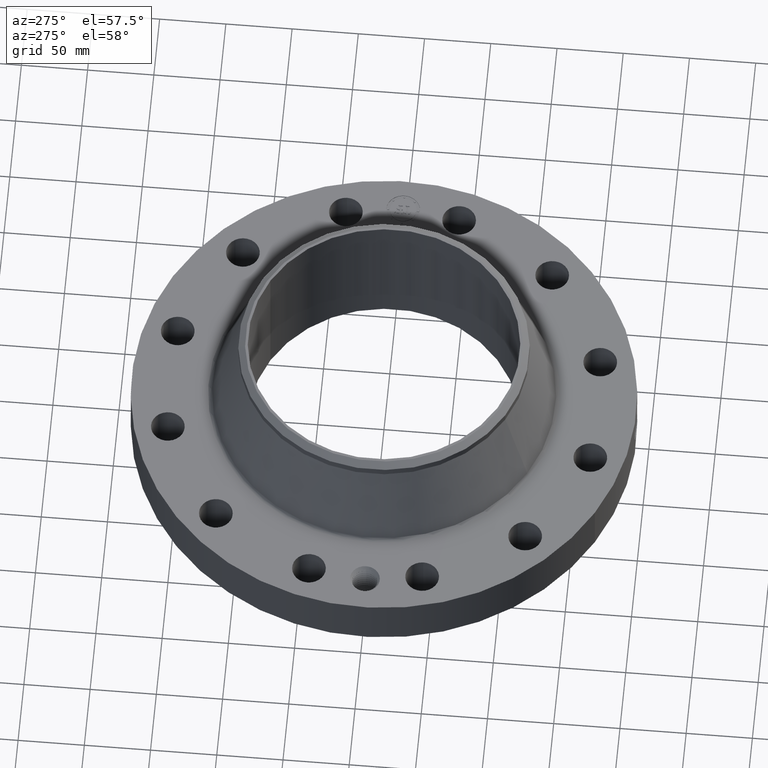
[diagram: clean part render]
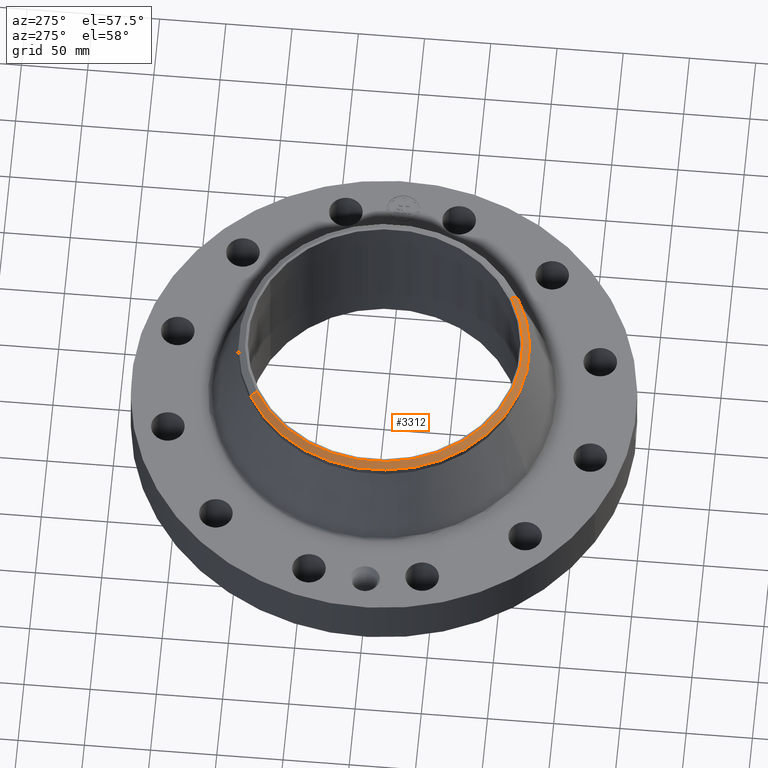
[diagram: same view with one face highlighted and labeled with its STEP entity id]
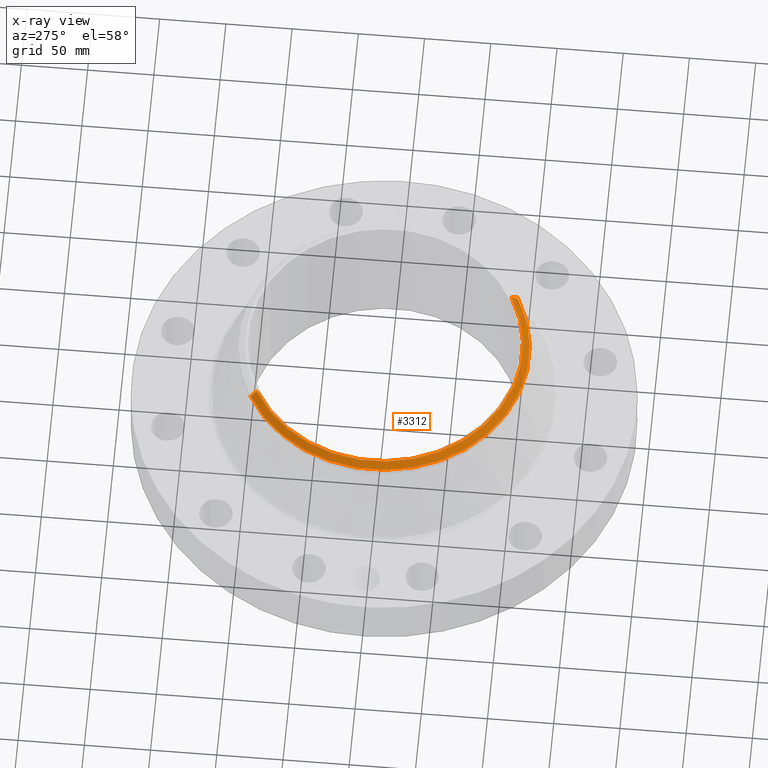
[diagram: x-ray of the same camera — body ghosted, the highlighted face saturated]
A machine part, auxiliary view. The second image highlights one B-rep face of the part: STEP entity #3312.
The next image is the same camera in x-ray: the body ghosted, the highlighted face saturated — about 0% of this face is hidden behind the body in this view.
In plain terms, the highlighted conical surface has half-angle 52.5 deg.
Its self-contained STEP definition (entity closure, byte-faithful):
#2501=AXIS2_PLACEMENT_3D('Circle Axis2P3D',#2499,#2500,$) ;
#3277=AXIS2_PLACEMENT_3D('Cone Axis2P3D',#3274,#3275,#3276) ;
#3295=AXIS2_PLACEMENT_3D('Circle Axis2P3D',#3293,#3294,$) ;
#3302=AXIS2_PLACEMENT_3D('Circle Axis2P3D',#3300,#3301,$) ;
#2494=CARTESIAN_POINT('Vertex',(1.97247180345,-3.61058541765,4.44000000002)) ;
#2496=CARTESIAN_POINT('Vertex',(-1.97247180345,3.61058541765,4.44000000002)) ;
#2499=CARTESIAN_POINT('Axis2P3D Location',(0.,0.,4.44000000002)) ;
#3274=CARTESIAN_POINT('Axis2P3D Location',(0.,0.,4.44000000002)) ;
#3279=CARTESIAN_POINT('Line Origine',(2.02059650127,-3.69867708611,4.36297577738)) ;
#3283=CARTESIAN_POINT('Vertex',(2.06872119909,-3.78676875457,4.28595155475)) ;
#3286=CARTESIAN_POINT('Line Origine',(-2.02059650127,3.69867708611,4.36297577738)) ;
#3290=CARTESIAN_POINT('Vertex',(-2.06872119909,3.78676875457,4.28595155475)) ;
#3293=CARTESIAN_POINT('Axis2P3D Location',(0.,0.,4.28595155475)) ;
#3297=CARTESIAN_POINT('Vertex',(-2.06872119909,-3.78676875457,4.28595155475)) ;
#3300=CARTESIAN_POINT('Axis2P3D Location',(0.,0.,4.28595155475)) ;
#2500=DIRECTION('Axis2P3D Direction',(0.,0.,-0.0393700787402)) ;
#3275=DIRECTION('Axis2P3D Direction',(-0.,-0.,-0.0393700787402)) ;
#3276=DIRECTION('Axis2P3D XDirection',(-0.0188750212049,0.0345504945626,0.)) ;
#3280=DIRECTION('Vector Direction',(0.014974561121,-0.02741075027,-0.023966985394)) ;
#3287=DIRECTION('Vector Direction',(-0.014974561121,0.02741075027,-0.023966985394)) ;
#3294=DIRECTION('Axis2P3D Direction',(0.,0.,-0.0393700787402)) ;
#3301=DIRECTION('Axis2P3D Direction',(0.,0.,-0.0393700787402)) ;
#3281=VECTOR('Line Direction',#3280,0.0393700787402) ;
#3288=VECTOR('Line Direction',#3287,0.0393700787402) ;
#3306=ORIENTED_EDGE('',*,*,#3285,.F.) ;
#3307=ORIENTED_EDGE('',*,*,#2503,.F.) ;
#3308=ORIENTED_EDGE('',*,*,#3292,.T.) ;
#3309=ORIENTED_EDGE('',*,*,#3299,.T.) ;
#3310=ORIENTED_EDGE('',*,*,#3304,.F.) ;
#3312=ADVANCED_FACE('PartBody',(#3311),#3278,.T.) ;
#2502=CIRCLE('generated circle',#2501,4.1142401575) ;
#3296=CIRCLE('generated circle',#3295,4.31500000002) ;
#3303=CIRCLE('generated circle',#3302,4.31500000002) ;
#3278=CONICAL_SURFACE('Cone',#3277,4.1142401575,0.916297857297) ;
#2503=EDGE_CURVE('',#2497,#2495,#2502,.F.) ;
#3285=EDGE_CURVE('',#2495,#3284,#3282,.T.) ;
#3292=EDGE_CURVE('',#2497,#3291,#3289,.T.) ;
#3299=EDGE_CURVE('',#3291,#3298,#3296,.F.) ;
#3304=EDGE_CURVE('',#3284,#3298,#3303,.T.) ;
#3305=EDGE_LOOP('',(#3306,#3307,#3308,#3309,#3310)) ;
#3311=FACE_OUTER_BOUND('',#3305,.T.) ;
#3282=LINE('Line',#3279,#3281) ;
#3289=LINE('Line',#3286,#3288) ;
#2495=VERTEX_POINT('',#2494) ;
#2497=VERTEX_POINT('',#2496) ;
#3284=VERTEX_POINT('',#3283) ;
#3291=VERTEX_POINT('',#3290) ;
#3298=VERTEX_POINT('',#3297) ;